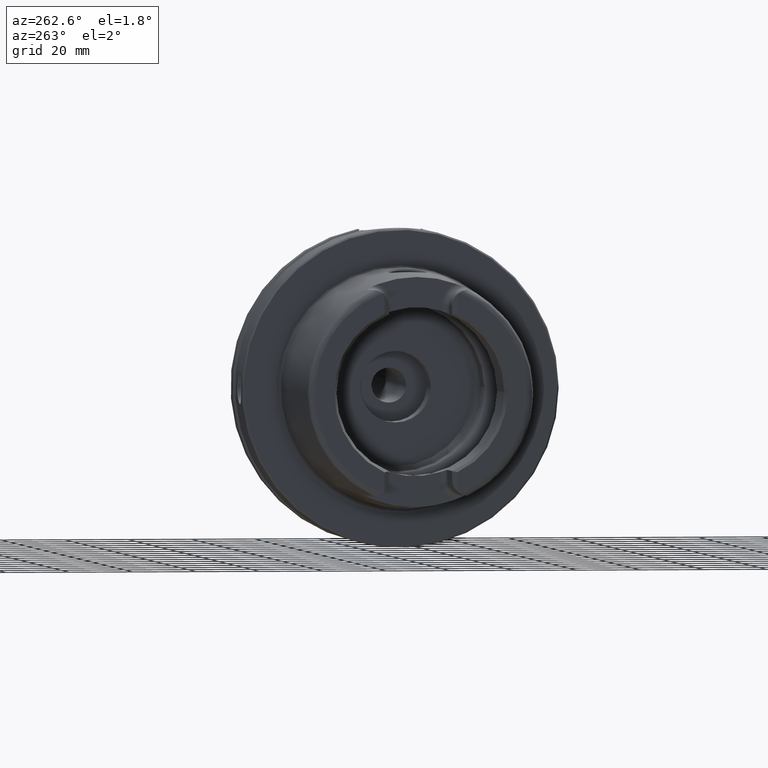
[diagram: clean part render]
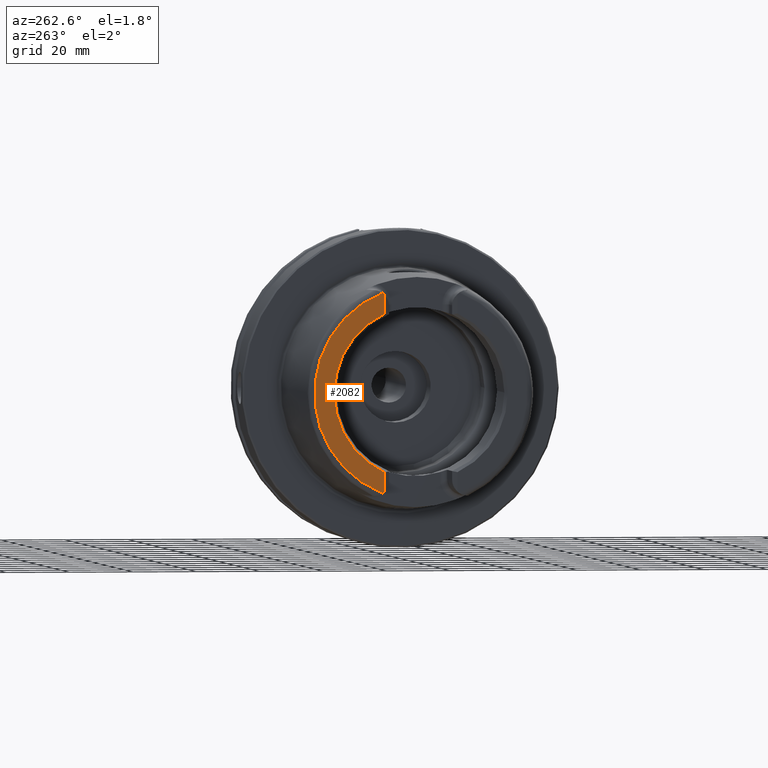
[diagram: same view with one face highlighted and labeled with its STEP entity id]
A machine part, auxiliary view. The second image highlights one B-rep face of the part: STEP entity #2082.
In plain terms, the highlighted planar face has unit normal (-1, 0, 0).
Its self-contained STEP definition (entity closure, byte-faithful):
#129=PLANE('',#2339);
#306=FACE_OUTER_BOUND('',#435,.T.);
#435=EDGE_LOOP('',(#1866,#1867,#1868,#1869,#1870,#1871));
#482=LINE('',#3132,#588);
#494=LINE('',#3243,#600);
#588=VECTOR('',#2512,10.);
#600=VECTOR('',#2572,10.);
#702=CIRCLE('',#2181,4.88);
#713=CIRCLE('',#2206,4.88);
#777=CIRCLE('',#2331,27.3660254037844);
#778=CIRCLE('',#2335,33.6001839277785);
#844=VERTEX_POINT('',#3125);
#847=VERTEX_POINT('',#3130);
#850=VERTEX_POINT('',#3140);
#871=VERTEX_POINT('',#3240);
#872=VERTEX_POINT('',#3242);
#877=VERTEX_POINT('',#3261);
#1066=EDGE_CURVE('',#847,#844,#482,.T.);
#1070=EDGE_CURVE('',#850,#844,#702,.T.);
#1097=EDGE_CURVE('',#871,#872,#494,.T.);
#1104=EDGE_CURVE('',#871,#877,#713,.T.);
#1292=EDGE_CURVE('',#872,#847,#777,.T.);
#1294=EDGE_CURVE('',#850,#877,#778,.T.);
#1866=ORIENTED_EDGE('',*,*,#1066,.F.);
#1867=ORIENTED_EDGE('',*,*,#1292,.F.);
#1868=ORIENTED_EDGE('',*,*,#1097,.F.);
#1869=ORIENTED_EDGE('',*,*,#1104,.T.);
#1870=ORIENTED_EDGE('',*,*,#1294,.F.);
#1871=ORIENTED_EDGE('',*,*,#1070,.T.);
#2082=ADVANCED_FACE('',(#306),#129,.T.);
#2181=AXIS2_PLACEMENT_3D('',#3141,#2520,#2521);
#2206=AXIS2_PLACEMENT_3D('',#3274,#2581,#2582);
#2331=AXIS2_PLACEMENT_3D('',#4457,#2893,#2894);
#2335=AXIS2_PLACEMENT_3D('',#4462,#2902,#2903);
#2339=AXIS2_PLACEMENT_3D('',#4469,#2911,#2912);
#2512=DIRECTION('',(0.,0.,-1.));
#2520=DIRECTION('center_axis',(-1.,0.,0.));
#2521=DIRECTION('ref_axis',(0.,-0.477884921181368,0.878422450821629));
#2572=DIRECTION('',(0.,0.,-1.));
#2581=DIRECTION('center_axis',(-1.,0.,0.));
#2582=DIRECTION('ref_axis',(0.,1.,0.));
#2893=DIRECTION('center_axis',(-1.,0.,0.));
#2894=DIRECTION('ref_axis',(0.,-1.,0.));
#2902=DIRECTION('center_axis',(1.,0.,0.));
#2903=DIRECTION('ref_axis',(0.,0.,-1.));
#2911=DIRECTION('center_axis',(-1.,0.,0.));
#2912=DIRECTION('ref_axis',(0.,0.,1.));
#3125=CARTESIAN_POINT('',(-50.,11.51,-30.8899431813596));
#3130=CARTESIAN_POINT('',(-50.,11.51,-24.8277918148307));
#3132=CARTESIAN_POINT('',(-50.,11.51,-10.));
#3140=CARTESIAN_POINT('',(-50.,12.0743049948301,-31.355757348091));
#3141=CARTESIAN_POINT('Origin',(-50.,14.89,-27.37));
#3240=CARTESIAN_POINT('',(-50.,11.51,30.8899431813596));
#3242=CARTESIAN_POINT('',(-50.,11.51,24.8277918148307));
#3243=CARTESIAN_POINT('',(-50.,11.51,13.685));
#3261=CARTESIAN_POINT('',(-50.,12.0743049948301,31.355757348091));
#3274=CARTESIAN_POINT('Origin',(-50.,14.89,27.37));
#4457=CARTESIAN_POINT('Origin',(-50.,0.,0.));
#4462=CARTESIAN_POINT('Origin',(-50.,0.,0.));
#4469=CARTESIAN_POINT('Origin',(-50.,33.6001839277785,0.));